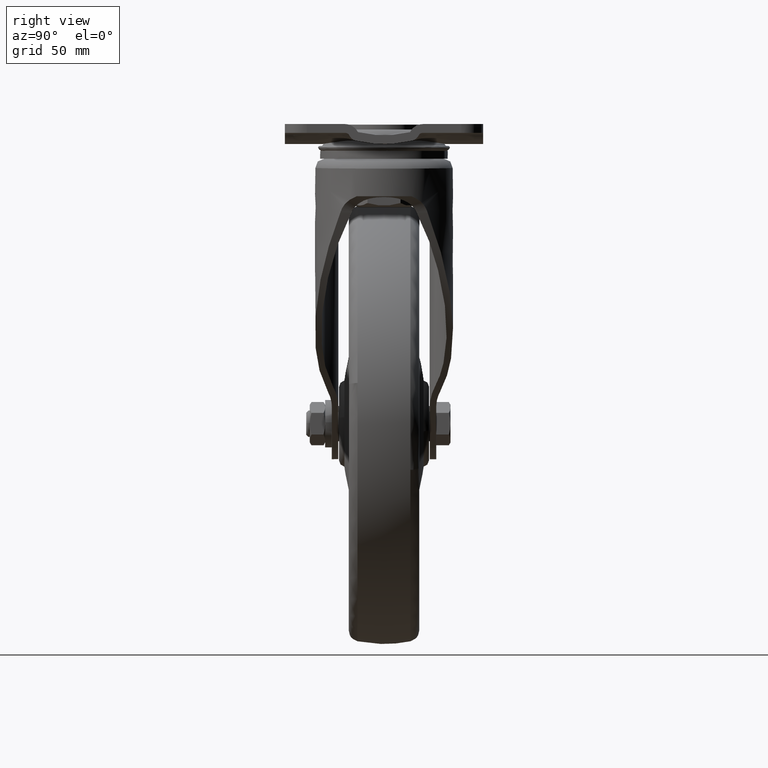
[diagram: clean part render]
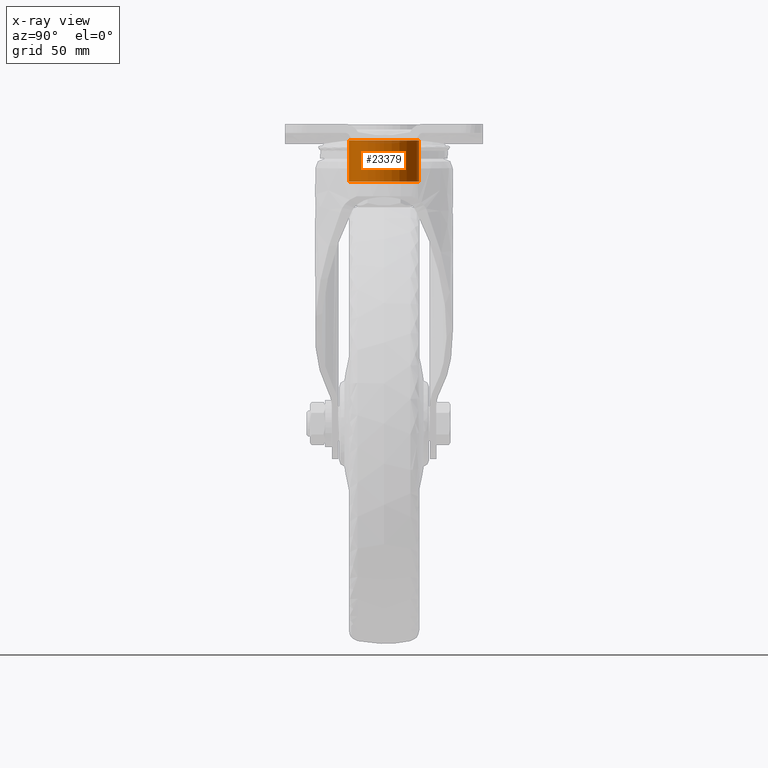
[diagram: x-ray — body ghosted, one internal face saturated and labeled with its STEP entity id]
A machine part, right view, then the same camera in x-ray: the body is ghosted and one INTERNAL B-rep face — a face not visible from any outside direction — is saturated and labeled: STEP entity #23379.
In plain terms, the highlighted face is a freeform B-spline surface patch.
Its self-contained STEP definition (entity closure, byte-faithful):
#23246=CARTESIAN_POINT('',(16.0,0.0,-7.185034000000150));
#23247=VERTEX_POINT('',#23246);
#23248=CARTESIAN_POINT('',(0.976776632906764,15.970156774728521,-7.185034000000150));
#23249=VERTEX_POINT('',#23248);
#23250=CARTESIAN_POINT('',(16.0,0.0,-7.185034000000150));
#23251=CARTESIAN_POINT('',(16.000000000000007,15.051297070161528,-7.185034000000152));
#23252=CARTESIAN_POINT('',(0.976776632906765,15.970156774728517,-7.185034000000148));
#23260=(BOUNDED_CURVE()B_SPLINE_CURVE(2,(#23250,#23251,#23252),.UNSPECIFIED.,.F.,.U.)B_SPLINE_CURVE_WITH_KNOTS((3,3),(0.0,0.239332962238197),.UNSPECIFIED.)CURVE()GEOMETRIC_REPRESENTATION_ITEM()RATIONAL_B_SPLINE_CURVE((1.0,0.719603993287584,0.976072041665119))REPRESENTATION_ITEM(''));
#23261=EDGE_CURVE('',#23247,#23249,#23260,.T.);
#23263=CARTESIAN_POINT('',(-0.976776632906761,-15.970156774728521,-7.185034000000149));
#23264=VERTEX_POINT('',#23263);
#23265=CARTESIAN_POINT('',(-0.976776632906765,-15.970156774728517,-7.185034000000148));
#23266=CARTESIAN_POINT('',(-0.488844212952439,-16.000000000000004,-7.185034000000149));
#23267=CARTESIAN_POINT('',(0.0,-16.0,-7.185034000000150));
#23268=CARTESIAN_POINT('',(15.999999999999998,-15.999999999999998,-7.185034000000151));
#23269=CARTESIAN_POINT('',(16.0,0.0,-7.185034000000150));
#23277=(BOUNDED_CURVE()B_SPLINE_CURVE(2,(#23265,#23266,#23267,#23268,#23269),.UNSPECIFIED.,.F.,.U.)B_SPLINE_CURVE_WITH_KNOTS((3,2,3),(0.739332962238197,0.750000000000000,1.0),.UNSPECIFIED.)CURVE()GEOMETRIC_REPRESENTATION_ITEM()RATIONAL_B_SPLINE_CURVE((0.976072041665119,0.987502787898964,1.0,0.707106781186548,1.0))REPRESENTATION_ITEM(''));
#23278=EDGE_CURVE('',#23264,#23247,#23277,.T.);
#23313=CARTESIAN_POINT('',(-0.976776632557712,-15.970156774749871,-26.470374150000001));
#23314=CARTESIAN_POINT('',(14.993380142192160,-16.946933407307572,-26.470374149999994));
#23315=CARTESIAN_POINT('',(15.970156774749871,-0.976776632557712,-26.470374150000001));
#23316=CARTESIAN_POINT('',(16.946933407307572,14.993380142192160,-26.470374149999994));
#23317=CARTESIAN_POINT('',(0.976776632557712,15.970156774749871,-26.470374150000001));
#23318=CARTESIAN_POINT('',(-0.976776632557712,-15.970156774749871,-6.702900496250152));
#23319=CARTESIAN_POINT('',(14.993380142192160,-16.946933407307572,-6.702900496250152));
#23320=CARTESIAN_POINT('',(15.970156774749871,-0.976776632557712,-6.702900496250152));
#23321=CARTESIAN_POINT('',(16.946933407307572,14.993380142192160,-6.702900496250152));
#23322=CARTESIAN_POINT('',(0.976776632557712,15.970156774749871,-6.702900496250152));
#23330=(BOUNDED_SURFACE()B_SPLINE_SURFACE(2,1,((#23313,#23318),(#23314,#23319),(#23315,#23320),(#23316,#23321),(#23317,#23322)),.UNSPECIFIED.,.F.,.F.,.U.)B_SPLINE_SURFACE_WITH_KNOTS((3,2,3),(2,2),(0.0,26.509667991878072,53.019335983756143),(0.0,19.767473653749850),.UNSPECIFIED.)GEOMETRIC_REPRESENTATION_ITEM()RATIONAL_B_SPLINE_SURFACE(((1.0,1.0),(0.707106781186548,0.707106781186548),(1.0,1.0),(0.707106781186548,0.707106781186548),(1.0,1.0)))REPRESENTATION_ITEM('')SURFACE());
#23331=ORIENTED_EDGE('',*,*,#23278,.T.);
#23332=ORIENTED_EDGE('',*,*,#23261,.T.);
#23333=CARTESIAN_POINT('',(0.976776632906761,15.970156774728521,-26.0));
#23334=VERTEX_POINT('',#23333);
#23335=CARTESIAN_POINT('',(0.976776632906761,15.970156774728521,-26.0));
#23336=CARTESIAN_POINT('',(0.976776632906764,15.970156774728521,-7.185034000000150));
#23337=QUASI_UNIFORM_CURVE('',1,(#23335,#23336),.UNSPECIFIED.,.F.,.U.);
#23338=EDGE_CURVE('',#23334,#23249,#23337,.T.);
#23339=ORIENTED_EDGE('',*,*,#23338,.F.);
#23340=CARTESIAN_POINT('',(16.0,0.0,-26.0));
#23341=VERTEX_POINT('',#23340);
#23342=CARTESIAN_POINT('',(16.0,0.0,-26.0));
#23343=CARTESIAN_POINT('',(16.000000000000007,15.051297070161528,-26.000000000000007));
#23344=CARTESIAN_POINT('',(0.976776632906765,15.970156774728517,-26.0));
#23352=(BOUNDED_CURVE()B_SPLINE_CURVE(2,(#23342,#23343,#23344),.UNSPECIFIED.,.F.,.U.)B_SPLINE_CURVE_WITH_KNOTS((3,3),(0.500000000000000,0.739332962238197),.UNSPECIFIED.)CURVE()GEOMETRIC_REPRESENTATION_ITEM()RATIONAL_B_SPLINE_CURVE((1.0,0.719603993287584,0.976072041665119))REPRESENTATION_ITEM(''));
#23353=EDGE_CURVE('',#23341,#23334,#23352,.T.);
#23354=ORIENTED_EDGE('',*,*,#23353,.F.);
#23355=CARTESIAN_POINT('',(-0.976776632906764,-15.970156774728521,-26.0));
#23356=VERTEX_POINT('',#23355);
#23357=CARTESIAN_POINT('',(-0.976776632906765,-15.970156774728517,-26.0));
#23358=CARTESIAN_POINT('',(-0.488844212952439,-16.000000000000004,-26.0));
#23359=CARTESIAN_POINT('',(0.0,-16.0,-26.0));
#23360=CARTESIAN_POINT('',(15.999999999999998,-15.999999999999998,-26.000000000000004));
#23361=CARTESIAN_POINT('',(16.0,0.0,-26.0));
#23369=(BOUNDED_CURVE()B_SPLINE_CURVE(2,(#23357,#23358,#23359,#23360,#23361),.UNSPECIFIED.,.F.,.U.)B_SPLINE_CURVE_WITH_KNOTS((3,2,3),(0.239332962238197,0.250000000000000,0.500000000000000),.UNSPECIFIED.)CURVE()GEOMETRIC_REPRESENTATION_ITEM()RATIONAL_B_SPLINE_CURVE((0.976072041665119,0.987502787898964,1.0,0.707106781186548,1.0))REPRESENTATION_ITEM(''));
#23370=EDGE_CURVE('',#23356,#23341,#23369,.T.);
#23371=ORIENTED_EDGE('',*,*,#23370,.F.);
#23372=CARTESIAN_POINT('',(-0.976776632906764,-15.970156774728521,-26.0));
#23373=CARTESIAN_POINT('',(-0.976776632906761,-15.970156774728521,-7.185034000000149));
#23374=QUASI_UNIFORM_CURVE('',1,(#23372,#23373),.UNSPECIFIED.,.F.,.U.);
#23375=EDGE_CURVE('',#23356,#23264,#23374,.T.);
#23376=ORIENTED_EDGE('',*,*,#23375,.T.);
#23377=EDGE_LOOP('',(#23331,#23332,#23339,#23354,#23371,#23376));
#23378=FACE_OUTER_BOUND('',#23377,.T.);
#23379=ADVANCED_FACE('',(#23378),#23330,.F.);